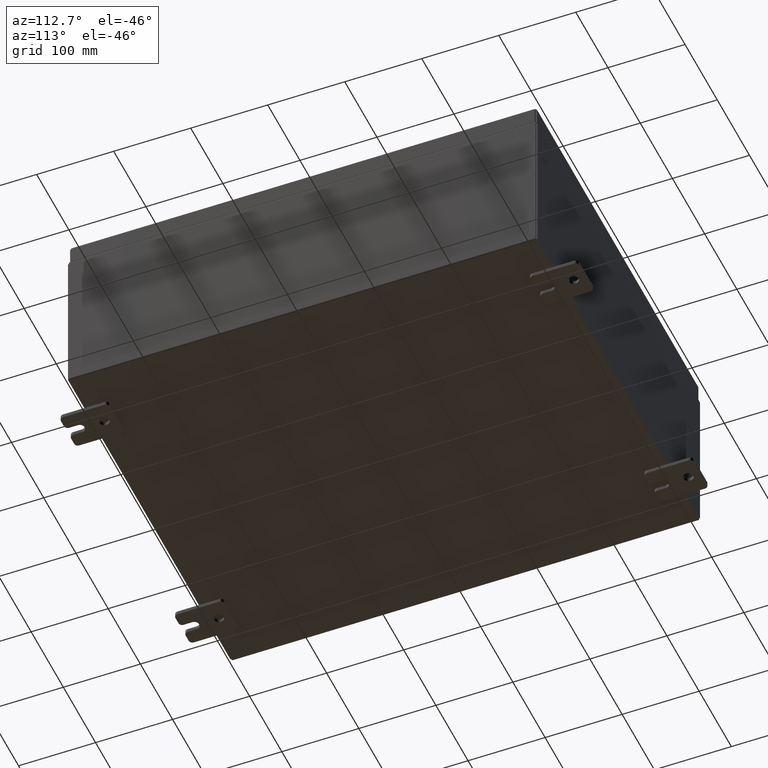
[diagram: clean part render]
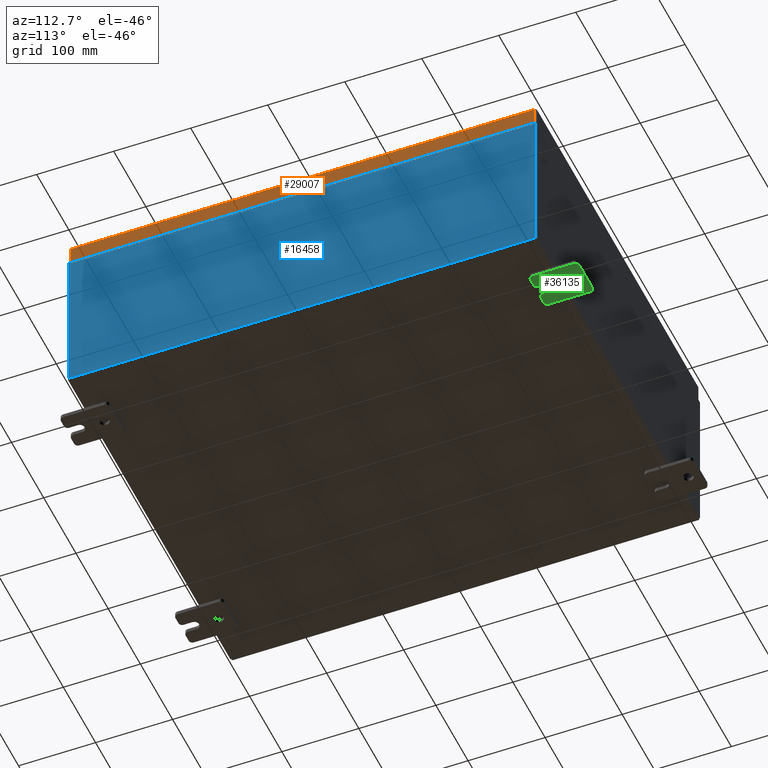
[diagram: same view with three faces highlighted in distinct colors, each labeled with its STEP entity id]
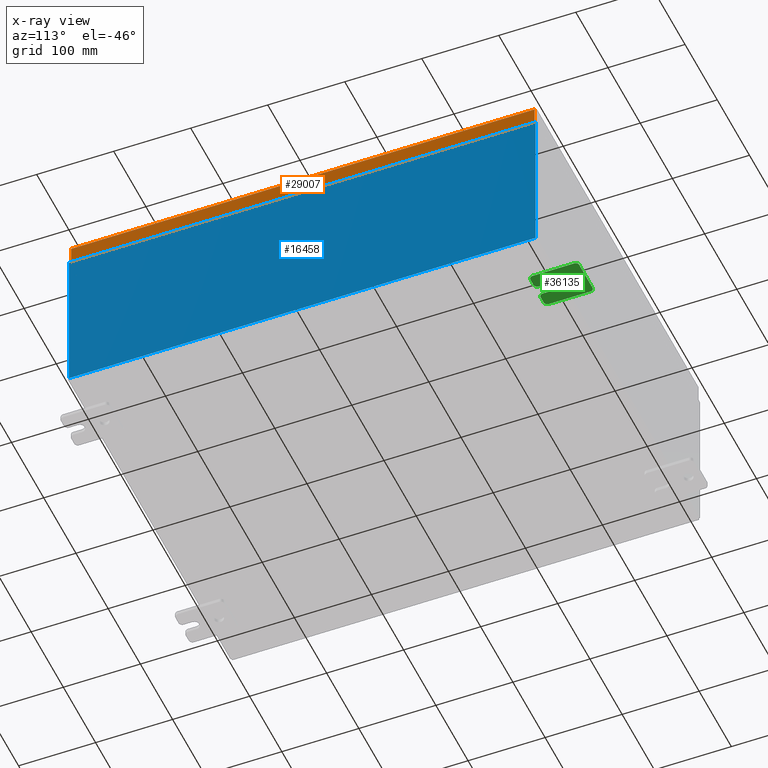
[diagram: x-ray of the same camera — body ghosted, the three highlighted faces saturated]
A machine part, auxiliary view with three faces highlighted in distinct colors.
The next image is the same camera in x-ray (body ghosted, the three faces saturated) — at least one of them is partly hidden behind the body in this view.
Their STEP definitions:

[orange] entity #29007 — the highlighted planar face has unit normal (1, 0, 0).
#2557 = VERTEX_POINT ( 'NONE', #60924 ) ;
#3717 = VERTEX_POINT ( 'NONE', #16725 ) ;
#4032 = EDGE_CURVE ( 'NONE', #2557, #24238, #8679, .T. ) ;
#4047 = VECTOR ( 'NONE', #48633, 39.37007874015748100 ) ;
#5303 = EDGE_CURVE ( 'NONE', #2557, #3717, #51529, .T. ) ;
#5787 = ORIENTED_EDGE ( 'NONE', *, *, #48780, .F. ) ;
#6747 = EDGE_CURVE ( 'NONE', #3717, #21344, #62186, .T. ) ;
#8679 = LINE ( 'NONE', #9428, #4047 ) ;
#8900 = EDGE_LOOP ( 'NONE', ( #5787, #11314, #23507, #15458 ) ) ;
#9428 = CARTESIAN_POINT ( 'NONE',  ( 9.937500000000000000, -11.93750000000000000, -0.9376999999999997600 ) ) ;
#10136 = VECTOR ( 'NONE', #10448, 39.37007874015748100 ) ;
#10448 = DIRECTION ( 'NONE',  ( -2.532419924601866100E-015, -6.982962677686265900E-015, 1.000000000000000000 ) ) ;
#11314 = ORIENTED_EDGE ( 'NONE', *, *, #4032, .F. ) ;
#11658 = LINE ( 'NONE', #25016, #10136 ) ;
#14794 = CARTESIAN_POINT ( 'NONE',  ( 9.937499999999998200, 11.84865786437626900, 1.081654723043559700E-013 ) ) ;
#15458 = ORIENTED_EDGE ( 'NONE', *, *, #6747, .T. ) ;
#16725 = CARTESIAN_POINT ( 'NONE',  ( 9.937499999999998200, 11.84865786437626800, -0.08770000000000008300 ) ) ;
#21344 = VERTEX_POINT ( 'NONE', #56619 ) ;
#23507 = ORIENTED_EDGE ( 'NONE', *, *, #5303, .T. ) ;
#24238 = VERTEX_POINT ( 'NONE', #39633 ) ;
#25016 = CARTESIAN_POINT ( 'NONE',  ( 9.937499999999998200, -11.84865786437626900, -0.07469999999999980800 ) ) ;
#25447 = VECTOR ( 'NONE', #29589, 39.37007874015748100 ) ;
#27306 = PLANE ( 'NONE',  #35330 ) ;
#29007 = ADVANCED_FACE ( 'NONE', ( #36609 ), #27306, .T. ) ;
#29589 = DIRECTION ( 'NONE',  ( -2.532419924601866100E-015, -6.982962677686265900E-015, 1.000000000000000000 ) ) ;
#32200 = DIRECTION ( 'NONE',  ( 2.532419924601866100E-015, 0.0000000000000000000, -1.000000000000000000 ) ) ;
#32877 = DIRECTION ( 'NONE',  ( 0.0000000000000000000, -1.000000000000000000, 0.0000000000000000000 ) ) ;
#35330 = AXIS2_PLACEMENT_3D ( 'NONE', #51746, #46358, #32200 ) ;
#36609 = FACE_OUTER_BOUND ( 'NONE', #8900, .T. ) ;
#37577 = VECTOR ( 'NONE', #32877, 39.37007874015748100 ) ;
#39633 = CARTESIAN_POINT ( 'NONE',  ( 9.937500000000000000, -11.84865786437626200, -0.9376999999999997600 ) ) ;
#46358 = DIRECTION ( 'NONE',  ( 1.000000000000000000, 0.0000000000000000000, 2.532419924601866100E-015 ) ) ;
#48633 = DIRECTION ( 'NONE',  ( 0.0000000000000000000, -1.000000000000000000, 0.0000000000000000000 ) ) ;
#48780 = EDGE_CURVE ( 'NONE', #24238, #21344, #11658, .T. ) ;
#51529 = LINE ( 'NONE', #14794, #25447 ) ;
#51746 = CARTESIAN_POINT ( 'NONE',  ( 9.937499999999998200, 0.0000000000000000000, 2.542673665674262200E-014 ) ) ;
#52429 = CARTESIAN_POINT ( 'NONE',  ( 9.937499999999998200, 0.0000000000000000000, -0.08770000000000008300 ) ) ;
#56619 = CARTESIAN_POINT ( 'NONE',  ( 9.937499999999998200, -11.84865786437626900, -0.08770000000000008300 ) ) ;
#60924 = CARTESIAN_POINT ( 'NONE',  ( 9.937500000000000000, 11.84865786437627300, -0.9376999999999997600 ) ) ;
#62186 = LINE ( 'NONE', #52429, #37577 ) ;

[blue] entity #16458 — the highlighted planar face has unit normal (-1, 0, 0).
#3720 = VERTEX_POINT ( 'NONE', #51056 ) ;
#8899 = LINE ( 'NONE', #48872, #33384 ) ;
#11373 = CARTESIAN_POINT ( 'NONE',  ( 10.00000000000000000, 11.92529999999999800, 0.01299999999999984700 ) ) ;
#11805 = FACE_OUTER_BOUND ( 'NONE', #13071, .T. ) ;
#12497 = ORIENTED_EDGE ( 'NONE', *, *, #17700, .T. ) ;
#12894 = VERTEX_POINT ( 'NONE', #41538 ) ;
#13071 = EDGE_LOOP ( 'NONE', ( #31318, #22910, #43294, #12497 ) ) ;
#14646 = VECTOR ( 'NONE', #45585, 39.37007874015748100 ) ;
#16458 = ADVANCED_FACE ( 'NONE', ( #11805 ), #50153, .F. ) ;
#17159 = DIRECTION ( 'NONE',  ( -0.0000000000000000000, -1.000000000000000000, -0.0000000000000000000 ) ) ;
#17700 = EDGE_CURVE ( 'NONE', #19604, #12894, #8899, .T. ) ;
#18386 = DIRECTION ( 'NONE',  ( -0.0000000000000000000, -1.000000000000000000, -0.0000000000000000000 ) ) ;
#19604 = VERTEX_POINT ( 'NONE', #11373 ) ;
#22910 = ORIENTED_EDGE ( 'NONE', *, *, #30273, .T. ) ;
#22937 = CARTESIAN_POINT ( 'NONE',  ( 10.00000000000002800, -11.92530000000000000, 7.837599999999998300 ) ) ;
#22976 = LINE ( 'NONE', #47757, #50605 ) ;
#25710 = DIRECTION ( 'NONE',  ( 3.584876173029202900E-015, 0.0000000000000000000, 1.000000000000000000 ) ) ;
#25895 = CARTESIAN_POINT ( 'NONE',  ( 10.00000000000000000, -11.92530000000000000, -3.610957538630361200E-014 ) ) ;
#30273 = EDGE_CURVE ( 'NONE', #42363, #3720, #40737, .T. ) ;
#31318 = ORIENTED_EDGE ( 'NONE', *, *, #33900, .T. ) ;
#33384 = VECTOR ( 'NONE', #58756, 39.37007874015748100 ) ;
#33900 = EDGE_CURVE ( 'NONE', #12894, #42363, #22976, .T. ) ;
#40737 = LINE ( 'NONE', #25895, #14646 ) ;
#41538 = CARTESIAN_POINT ( 'NONE',  ( 10.00000000000002800, 11.92529999999999800, 7.837599999999992100 ) ) ;
#41596 = CARTESIAN_POINT ( 'NONE',  ( 10.00000000000000000, -11.92530000000000000, 0.01299999999999984700 ) ) ;
#41844 = VECTOR ( 'NONE', #17159, 39.37007874015748100 ) ;
#42363 = VERTEX_POINT ( 'NONE', #22937 ) ;
#43294 = ORIENTED_EDGE ( 'NONE', *, *, #44000, .F. ) ;
#43354 = LINE ( 'NONE', #41596, #41844 ) ;
#44000 = EDGE_CURVE ( 'NONE', #19604, #3720, #43354, .T. ) ;
#45191 = CARTESIAN_POINT ( 'NONE',  ( 10.00000000000000000, 0.0000000000000000000, -3.610957538630361200E-014 ) ) ;
#45585 = DIRECTION ( 'NONE',  ( -3.584876173029202900E-015, 0.0000000000000000000, -1.000000000000000000 ) ) ;
#47757 = CARTESIAN_POINT ( 'NONE',  ( 10.00000000000002800, 11.92530000000000000, 7.837599999999992100 ) ) ;
#48872 = CARTESIAN_POINT ( 'NONE',  ( 10.00000000000000000, 11.92530000000000000, -3.610957538630361200E-014 ) ) ;
#50153 = PLANE ( 'NONE',  #61674 ) ;
#50605 = VECTOR ( 'NONE', #18386, 39.37007874015748100 ) ;
#51056 = CARTESIAN_POINT ( 'NONE',  ( 10.00000000000000000, -11.92530000000000000, 0.01299999999999983600 ) ) ;
#55072 = DIRECTION ( 'NONE',  ( -1.000000000000000000, 0.0000000000000000000, 3.584876173029202900E-015 ) ) ;
#58756 = DIRECTION ( 'NONE',  ( 3.584876173029202900E-015, 0.0000000000000000000, 1.000000000000000000 ) ) ;
#61674 = AXIS2_PLACEMENT_3D ( 'NONE', #45191, #55072, #25710 ) ;

[green] entity #36135 — the highlighted planar face has unit normal (0, 0, 1).
#971 = EDGE_CURVE ( 'NONE', #36144, #10262, #9242, .T. ) ;
#1915 = CARTESIAN_POINT ( 'NONE',  ( -0.1880000000000001900, -0.6249999999999992200, 0.2500000000000005000 ) ) ;
#2889 = ORIENTED_EDGE ( 'NONE', *, *, #37932, .F. ) ;
#3883 = VERTEX_POINT ( 'NONE', #17804 ) ;
#4466 = VERTEX_POINT ( 'NONE', #60637 ) ;
#4887 = CARTESIAN_POINT ( 'NONE',  ( -0.1879999999999997800, -1.250000000000002200, 0.9999999999999992200 ) ) ;
#5145 = DIRECTION ( 'NONE',  ( -1.000000000000000000, -0.0000000000000000000, 0.0000000000000000000 ) ) ;
#5573 = DIRECTION ( 'NONE',  ( 1.000000000000000000, -0.0000000000000000000, -5.163192708025532000E-017 ) ) ;
#5593 = ORIENTED_EDGE ( 'NONE', *, *, #43831, .F. ) ;
#6771 = FACE_OUTER_BOUND ( 'NONE', #43894, .T. ) ;
#8163 = CARTESIAN_POINT ( 'NONE',  ( -0.1880000000000001900, -0.6249999999999992200, -0.2499999999999993900 ) ) ;
#8206 = CARTESIAN_POINT ( 'NONE',  ( -0.1879999999999997800, 1.059999999999996300, 0.8099999999999938400 ) ) ;
#8557 = CARTESIAN_POINT ( 'NONE',  ( -0.1879999999999997800, -1.250000000000004700, -0.4400000000000002200 ) ) ;
#8662 = CARTESIAN_POINT ( 'NONE',  ( -0.1880000000000010000, 0.6249999999999992200, -0.2499999999999999200 ) ) ;
#8975 = EDGE_CURVE ( 'NONE', #28462, #3883, #29797, .T. ) ;
#8990 = DIRECTION ( 'NONE',  ( 0.0000000000000000000, -1.000000000000000000, 1.639108796198558100E-015 ) ) ;
#9068 = AXIS2_PLACEMENT_3D ( 'NONE', #9518, #43777, #14420 ) ;
#9242 = CIRCLE ( 'NONE', #39914, 0.2499999999999999200 ) ;
#9517 = EDGE_CURVE ( 'NONE', #51464, #57503, #27485, .T. ) ;
#9518 = CARTESIAN_POINT ( 'NONE',  ( -0.1879999999999997800, -1.060000000000003400, -0.4400000000000005000 ) ) ;
#10262 = VERTEX_POINT ( 'NONE', #12522 ) ;
#10376 = VECTOR ( 'NONE', #34180, 39.37007874015748100 ) ;
#10692 = VERTEX_POINT ( 'NONE', #34932 ) ;
#11276 = AXIS2_PLACEMENT_3D ( 'NONE', #44209, #14851, #49170 ) ;
#11420 = LINE ( 'NONE', #8163, #63602 ) ;
#12518 = EDGE_CURVE ( 'NONE', #28462, #54210, #38743, .T. ) ;
#12522 = CARTESIAN_POINT ( 'NONE',  ( -0.1880000000000010000, 0.6249999999999992200, 0.2499999999999999200 ) ) ;
#13099 = DIRECTION ( 'NONE',  ( 0.0000000000000000000, 0.0000000000000000000, -1.000000000000000000 ) ) ;
#13353 = CARTESIAN_POINT ( 'NONE',  ( -0.1879999999999997800, 0.0000000000000000000, 0.0000000000000000000 ) ) ;
#13602 = CARTESIAN_POINT ( 'NONE',  ( -0.1879999999999997800, -1.060000000000004500, -1.000000000000006400 ) ) ;
#13620 = ORIENTED_EDGE ( 'NONE', *, *, #59442, .F. ) ;
#14152 = EDGE_LOOP ( 'NONE', ( #32399, #55712 ) ) ;
#14420 = DIRECTION ( 'NONE',  ( 0.0000000000000000000, 0.0000000000000000000, -1.000000000000000000 ) ) ;
#14851 = DIRECTION ( 'NONE',  ( -1.000000000000000000, -0.0000000000000000000, 0.0000000000000000000 ) ) ;
#16164 = EDGE_CURVE ( 'NONE', #44896, #30859, #32507, .T. ) ;
#16259 = DIRECTION ( 'NONE',  ( -1.000000000000000000, -0.0000000000000000000, 0.0000000000000000000 ) ) ;
#16508 = CARTESIAN_POINT ( 'NONE',  ( -0.1880000000000001900, -0.6249999999999992200, 6.829619984160658000E-017 ) ) ;
#17804 = CARTESIAN_POINT ( 'NONE',  ( -0.1879999999999997800, 1.059999999999993400, -1.000000000000010000 ) ) ;
#18140 = DIRECTION ( 'NONE',  ( -1.000000000000000000, -0.0000000000000000000, 0.0000000000000000000 ) ) ;
#18172 = DIRECTION ( 'NONE',  ( 1.000000000000000000, -0.0000000000000000000, -5.163192708025532000E-017 ) ) ;
#18177 = ORIENTED_EDGE ( 'NONE', *, *, #34131, .T. ) ;
#18492 = CARTESIAN_POINT ( 'NONE',  ( -0.1879999999999997800, -1.250000000000005600, -1.000000000000006200 ) ) ;
#18567 = EDGE_CURVE ( 'NONE', #26743, #4466, #61009, .T. ) ;
#18965 = ORIENTED_EDGE ( 'NONE', *, *, #18567, .F. ) ;
#20341 = VERTEX_POINT ( 'NONE', #1915 ) ;
#20850 = ORIENTED_EDGE ( 'NONE', *, *, #16164, .T. ) ;
#21107 = ORIENTED_EDGE ( 'NONE', *, *, #36879, .F. ) ;
#21450 = DIRECTION ( 'NONE',  ( -6.829619984160660000E-016, -1.000000000000000000, 0.0000000000000000000 ) ) ;
#21802 = CIRCLE ( 'NONE', #53485, 0.2499999999999999200 ) ;
#22461 = CARTESIAN_POINT ( 'NONE',  ( -0.1879999999999997800, 1.249999999999997300, 0.8099999999999935000 ) ) ;
#22831 = ORIENTED_EDGE ( 'NONE', *, *, #26133, .F. ) ;
#24639 = CARTESIAN_POINT ( 'NONE',  ( -0.1879999999999997800, 1.249999999999994200, -1.000000000000010400 ) ) ;
#25754 = ORIENTED_EDGE ( 'NONE', *, *, #30794, .F. ) ;
#26133 = EDGE_CURVE ( 'NONE', #38292, #30859, #11420, .T. ) ;
#26215 = AXIS2_PLACEMENT_3D ( 'NONE', #47514, #18140, #52444 ) ;
#26743 = VERTEX_POINT ( 'NONE', #46548 ) ;
#27485 = CIRCLE ( 'NONE', #26215, 0.1900000000000011100 ) ;
#28462 = VERTEX_POINT ( 'NONE', #47515 ) ;
#28767 = AXIS2_PLACEMENT_3D ( 'NONE', #8206, #42444, #13099 ) ;
#29233 = CIRCLE ( 'NONE', #43155, 0.2499999999999999200 ) ;
#29248 = ORIENTED_EDGE ( 'NONE', *, *, #12518, .F. ) ;
#29388 = DIRECTION ( 'NONE',  ( 6.556435184794182400E-016, 1.000000000000000000, 0.0000000000000000000 ) ) ;
#29797 = CIRCLE ( 'NONE', #37233, 0.1900000000000011100 ) ;
#29817 = VECTOR ( 'NONE', #8990, 39.37007874015748100 ) ;
#30794 = EDGE_CURVE ( 'NONE', #10692, #20341, #41473, .T. ) ;
#30859 = VERTEX_POINT ( 'NONE', #59003 ) ;
#30993 = CARTESIAN_POINT ( 'NONE',  ( -0.1879999999999997800, -1.250000000000005300, -0.8100000000000047200 ) ) ;
#31043 = ORIENTED_EDGE ( 'NONE', *, *, #54807, .T. ) ;
#31857 = EDGE_CURVE ( 'NONE', #44593, #54210, #62241, .T. ) ;
#32399 = ORIENTED_EDGE ( 'NONE', *, *, #971, .T. ) ;
#32507 = CIRCLE ( 'NONE', #9068, 0.1900000000000011100 ) ;
#32525 = DIRECTION ( 'NONE',  ( -6.556435184794182400E-016, -1.000000000000000000, -1.639108796198545600E-016 ) ) ;
#33022 = DIRECTION ( 'NONE',  ( -0.0000000000000000000, 0.0000000000000000000, -1.000000000000000000 ) ) ;
#33542 = AXIS2_PLACEMENT_3D ( 'NONE', #45609, #16259, #50564 ) ;
#34131 = EDGE_CURVE ( 'NONE', #10692, #4466, #42881, .T. ) ;
#34180 = DIRECTION ( 'NONE',  ( 0.0000000000000000000, -1.639108796198553600E-015, -1.000000000000000000 ) ) ;
#34447 = CARTESIAN_POINT ( 'NONE',  ( -0.1879999999999997800, 1.059999999999993600, -0.8100000000000089400 ) ) ;
#34857 = CARTESIAN_POINT ( 'NONE',  ( -0.1880000000000010000, 0.6249999999999992200, -7.703811342100550500E-020 ) ) ;
#34932 = CARTESIAN_POINT ( 'NONE',  ( -0.1880000000000004700, -1.060000000000002100, 0.2500000000000005000 ) ) ;
#35534 = CARTESIAN_POINT ( 'NONE',  ( -0.1879999999999997800, 1.059999999999996500, 0.9999999999999953400 ) ) ;
#35795 = LINE ( 'NONE', #18492, #47332 ) ;
#36135 = ADVANCED_FACE ( 'NONE', ( #55836, #6771 ), #37739, .F. ) ;
#36144 = VERTEX_POINT ( 'NONE', #8662 ) ;
#36879 = EDGE_CURVE ( 'NONE', #51464, #3883, #35795, .T. ) ;
#37233 = AXIS2_PLACEMENT_3D ( 'NONE', #34447, #5145, #39406 ) ;
#37739 = PLANE ( 'NONE',  #49108 ) ;
#37932 = EDGE_CURVE ( 'NONE', #44896, #57503, #61874, .T. ) ;
#38292 = VERTEX_POINT ( 'NONE', #46134 ) ;
#38743 = LINE ( 'NONE', #24639, #63352 ) ;
#39406 = DIRECTION ( 'NONE',  ( 0.0000000000000000000, 0.0000000000000000000, -1.000000000000000000 ) ) ;
#39423 = DIRECTION ( 'NONE',  ( 0.0000000000000000000, 1.639108796198553600E-015, 1.000000000000000000 ) ) ;
#39783 = CIRCLE ( 'NONE', #33542, 0.1900000000000011100 ) ;
#39823 = DIRECTION ( 'NONE',  ( 0.0000000000000000000, 0.0000000000000000000, -1.000000000000000000 ) ) ;
#39914 = AXIS2_PLACEMENT_3D ( 'NONE', #34857, #5573, #39823 ) ;
#41248 = ORIENTED_EDGE ( 'NONE', *, *, #9517, .T. ) ;
#41473 = LINE ( 'NONE', #43963, #51463 ) ;
#42444 = DIRECTION ( 'NONE',  ( -1.000000000000000000, -0.0000000000000000000, 0.0000000000000000000 ) ) ;
#42881 = CIRCLE ( 'NONE', #11276, 0.1900000000000011400 ) ;
#43155 = AXIS2_PLACEMENT_3D ( 'NONE', #16508, #50835, #21450 ) ;
#43777 = DIRECTION ( 'NONE',  ( -1.000000000000000000, -0.0000000000000000000, 0.0000000000000000000 ) ) ;
#43831 = EDGE_CURVE ( 'NONE', #20341, #38292, #29233, .T. ) ;
#43894 = EDGE_LOOP ( 'NONE', ( #18965, #31043, #13620, #58599, #29248, #55453, #21107, #41248, #2889, #20850, #22831, #5593, #25754, #18177 ) ) ;
#43963 = CARTESIAN_POINT ( 'NONE',  ( -0.1880000000000005800, -1.250000000000003800, 0.2500000000000005000 ) ) ;
#44209 = CARTESIAN_POINT ( 'NONE',  ( -0.1879999999999997800, -1.060000000000002100, 0.4400000000000016700 ) ) ;
#44240 = DIRECTION ( 'NONE',  ( 0.0000000000000000000, -1.639108796198553600E-015, -1.000000000000000000 ) ) ;
#44593 = VERTEX_POINT ( 'NONE', #35534 ) ;
#44896 = VERTEX_POINT ( 'NONE', #8557 ) ;
#45609 = CARTESIAN_POINT ( 'NONE',  ( -0.1879999999999997800, -1.060000000000001600, 0.8099999999999978300 ) ) ;
#45869 = EDGE_CURVE ( 'NONE', #10262, #36144, #21802, .T. ) ;
#46134 = CARTESIAN_POINT ( 'NONE',  ( -0.1880000000000001900, -0.6249999999999992200, -0.2499999999999998600 ) ) ;
#46548 = CARTESIAN_POINT ( 'NONE',  ( -0.1879999999999997800, -1.250000000000002400, 0.8099999999999980500 ) ) ;
#47332 = VECTOR ( 'NONE', #52776, 39.37007874015748100 ) ;
#47514 = CARTESIAN_POINT ( 'NONE',  ( -0.1879999999999997800, -1.060000000000004100, -0.8100000000000050500 ) ) ;
#47515 = CARTESIAN_POINT ( 'NONE',  ( -0.1879999999999997800, 1.249999999999994700, -0.8100000000000092700 ) ) ;
#47539 = CARTESIAN_POINT ( 'NONE',  ( -0.1880000000000010000, 0.6249999999999992200, -7.703811342100550500E-020 ) ) ;
#47980 = CARTESIAN_POINT ( 'NONE',  ( -0.1879999999999997800, 1.249999999999997600, 0.9999999999999951200 ) ) ;
#48302 = CARTESIAN_POINT ( 'NONE',  ( -0.1879999999999997800, -1.060000000000001200, 0.9999999999999988900 ) ) ;
#48806 = VECTOR ( 'NONE', #44240, 39.37007874015748100 ) ;
#49108 = AXIS2_PLACEMENT_3D ( 'NONE', #13353, #62449, #33022 ) ;
#49170 = DIRECTION ( 'NONE',  ( 0.0000000000000000000, 0.0000000000000000000, -1.000000000000000000 ) ) ;
#50564 = DIRECTION ( 'NONE',  ( 0.0000000000000000000, 7.189073667537492800E-016, -1.000000000000000000 ) ) ;
#50835 = DIRECTION ( 'NONE',  ( -1.000000000000000000, 6.523827964459549700E-016, 5.163192708025532000E-017 ) ) ;
#51464 = VERTEX_POINT ( 'NONE', #13602 ) ;
#51463 = VECTOR ( 'NONE', #29388, 39.37007874015748100 ) ;
#52444 = DIRECTION ( 'NONE',  ( 0.0000000000000000000, 0.0000000000000000000, -1.000000000000000000 ) ) ;
#52468 = DIRECTION ( 'NONE',  ( 0.0000000000000000000, 0.0000000000000000000, -1.000000000000000000 ) ) ;
#52776 = DIRECTION ( 'NONE',  ( 0.0000000000000000000, 1.000000000000000000, -1.639108796198558100E-015 ) ) ;
#52847 = VERTEX_POINT ( 'NONE', #48302 ) ;
#53485 = AXIS2_PLACEMENT_3D ( 'NONE', #47539, #18172, #52468 ) ;
#54210 = VERTEX_POINT ( 'NONE', #22461 ) ;
#54807 = EDGE_CURVE ( 'NONE', #26743, #52847, #39783, .T. ) ;
#55453 = ORIENTED_EDGE ( 'NONE', *, *, #8975, .T. ) ;
#55712 = ORIENTED_EDGE ( 'NONE', *, *, #45869, .T. ) ;
#55836 = FACE_BOUND ( 'NONE', #14152, .T. ) ;
#55913 = LINE ( 'NONE', #47980, #29817 ) ;
#57503 = VERTEX_POINT ( 'NONE', #30993 ) ;
#58599 = ORIENTED_EDGE ( 'NONE', *, *, #31857, .T. ) ;
#59003 = CARTESIAN_POINT ( 'NONE',  ( -0.1880000000000004700, -1.060000000000003400, -0.2499999999999994400 ) ) ;
#59290 = CARTESIAN_POINT ( 'NONE',  ( -0.1879999999999997800, -1.250000000000002200, 0.9999999999999992200 ) ) ;
#59442 = EDGE_CURVE ( 'NONE', #44593, #52847, #55913, .T. ) ;
#60637 = CARTESIAN_POINT ( 'NONE',  ( -0.1879999999999997800, -1.250000000000003100, 0.4400000000000020000 ) ) ;
#61009 = LINE ( 'NONE', #4887, #10376 ) ;
#61874 = LINE ( 'NONE', #59290, #48806 ) ;
#62241 = CIRCLE ( 'NONE', #28767, 0.1900000000000011100 ) ;
#62449 = DIRECTION ( 'NONE',  ( 1.000000000000000000, 0.0000000000000000000, -0.0000000000000000000 ) ) ;
#63352 = VECTOR ( 'NONE', #39423, 39.37007874015748100 ) ;
#63602 = VECTOR ( 'NONE', #32525, 39.37007874015748100 ) ;